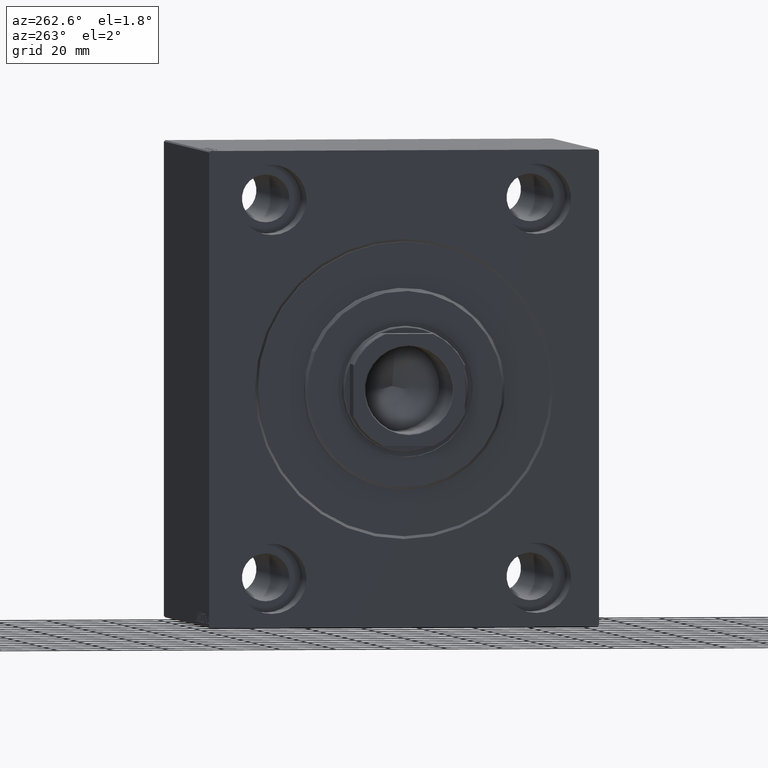
[diagram: clean part render]
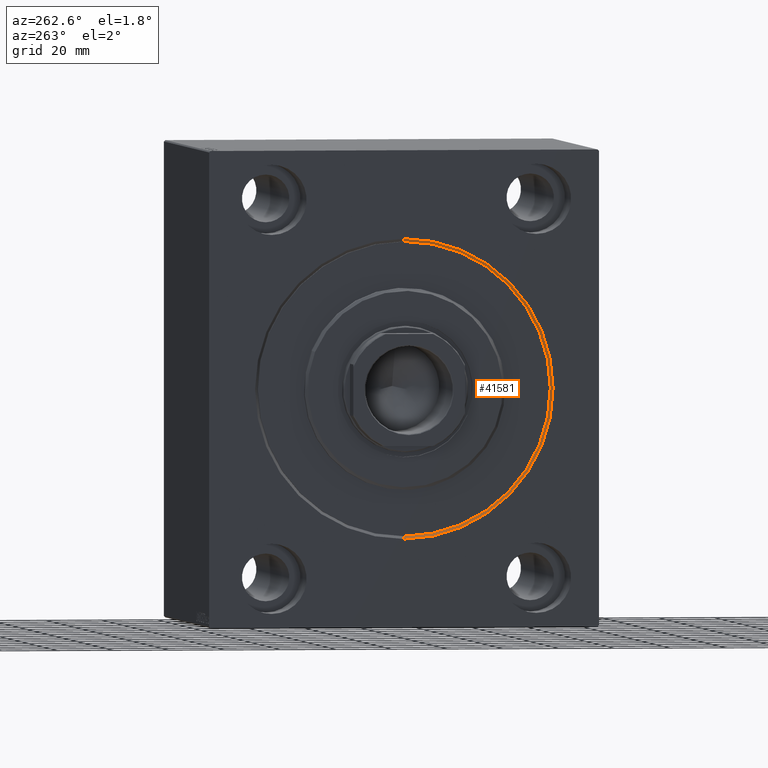
[diagram: same view with one face highlighted and labeled with its STEP entity id]
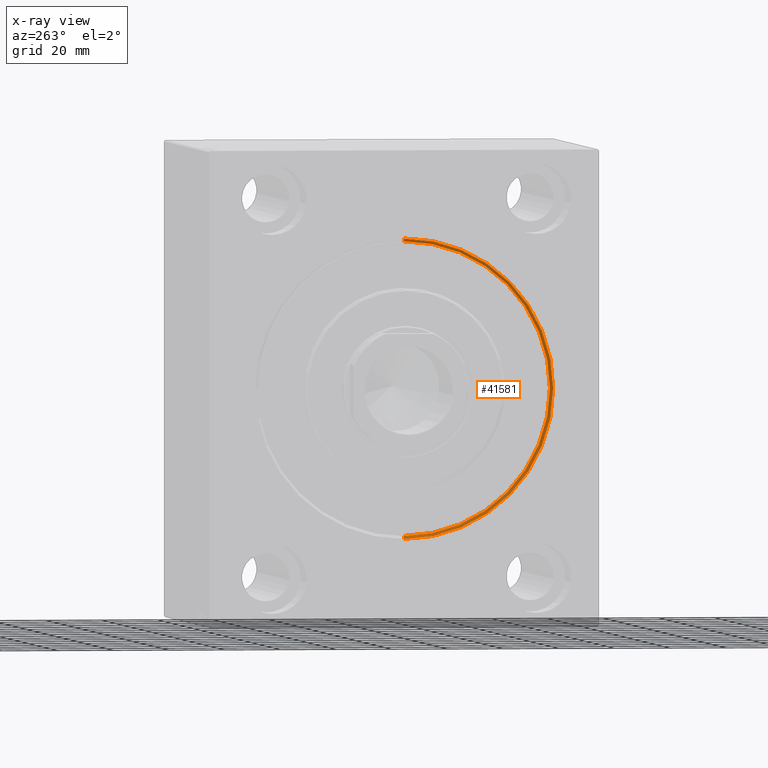
[diagram: x-ray of the same camera — body ghosted, the highlighted face saturated]
A machine part, auxiliary view. The second image highlights one B-rep face of the part: STEP entity #41581.
The next image is the same camera in x-ray: the body ghosted, the highlighted face saturated — about 0% of this face is hidden behind the body in this view.
In plain terms, the highlighted conical surface has half-angle 45 deg.
Its self-contained STEP definition (entity closure, byte-faithful):
#504 = CIRCLE ( 'NONE', #33932, 52.49999999999999289 ) ;
#975 = VECTOR ( 'NONE', #38723, 999.9999999999998863 ) ;
#3887 = EDGE_CURVE ( 'NONE', #18472, #4777, #504, .T. ) ;
#4777 = VERTEX_POINT ( 'NONE', #17384 ) ;
#7023 = CARTESIAN_POINT ( 'NONE',  ( 0.000000000000000000, 0.000000000000000000, 0.000000000000000000 ) ) ;
#9867 = LINE ( 'NONE', #11979, #975 ) ;
#10505 = VERTEX_POINT ( 'NONE', #11702 ) ;
#11702 = CARTESIAN_POINT ( 'NONE',  ( 0.000000000000000000, 0.000000000000000000, 53.50000000000002842 ) ) ;
#11979 = CARTESIAN_POINT ( 'NONE',  ( 1.000000000000021760, 6.429395695523603167E-15, -52.49999999999999289 ) ) ;
#12441 = EDGE_CURVE ( 'NONE', #4777, #10505, #28731, .T. ) ;
#13245 = DIRECTION ( 'NONE',  ( 0.000000000000000000, 0.000000000000000000, 1.000000000000000000 ) ) ;
#15953 = CIRCLE ( 'NONE', #30890, 53.50000000000002842 ) ;
#17384 = CARTESIAN_POINT ( 'NONE',  ( 1.000000000000021760, 0.000000000000000000, 52.49999999999999289 ) ) ;
#18472 = VERTEX_POINT ( 'NONE', #29806 ) ;
#19712 = CARTESIAN_POINT ( 'NONE',  ( 1.000000000000021760, 0.000000000000000000, 0.000000000000000000 ) ) ;
#20355 = ORIENTED_EDGE ( 'NONE', *, *, #3887, .F. ) ;
#22273 = CARTESIAN_POINT ( 'NONE',  ( 1.000000000000021760, 0.000000000000000000, 52.49999999999999289 ) ) ;
#22492 = DIRECTION ( 'NONE',  ( -0.7071067811865425767, 0.000000000000000000, 0.7071067811865525687 ) ) ;
#22789 = ORIENTED_EDGE ( 'NONE', *, *, #37538, .T. ) ;
#23233 = DIRECTION ( 'NONE',  ( 0.000000000000000000, 0.000000000000000000, -1.000000000000000000 ) ) ;
#25796 = CARTESIAN_POINT ( 'NONE',  ( 0.000000000000000000, 6.551860375438343048E-15, -53.50000000000002842 ) ) ;
#28731 = LINE ( 'NONE', #22273, #34761 ) ;
#29806 = CARTESIAN_POINT ( 'NONE',  ( 1.000000000000021760, 6.429395695523603167E-15, -52.49999999999999289 ) ) ;
#30890 = AXIS2_PLACEMENT_3D ( 'NONE', #7023, #37513, #33955 ) ;
#31650 = CONICAL_SURFACE ( 'NONE', #38740, 52.49999999999999289, 0.7853981633974552734 ) ;
#32898 = ORIENTED_EDGE ( 'NONE', *, *, #12441, .F. ) ;
#33687 = ORIENTED_EDGE ( 'NONE', *, *, #40557, .F. ) ;
#33932 = AXIS2_PLACEMENT_3D ( 'NONE', #40155, #36803, #23233 ) ;
#33955 = DIRECTION ( 'NONE',  ( 0.000000000000000000, 0.000000000000000000, -1.000000000000000000 ) ) ;
#34761 = VECTOR ( 'NONE', #22492, 999.9999999999998863 ) ;
#35907 = EDGE_LOOP ( 'NONE', ( #20355, #22789, #33687, #32898 ) ) ;
#36803 = DIRECTION ( 'NONE',  ( -1.000000000000000000, 0.000000000000000000, 0.000000000000000000 ) ) ;
#37513 = DIRECTION ( 'NONE',  ( 1.000000000000000000, 0.000000000000000000, 0.000000000000000000 ) ) ;
#37538 = EDGE_CURVE ( 'NONE', #18472, #42102, #9867, .T. ) ;
#38723 = DIRECTION ( 'NONE',  ( -0.7071067811865425767, 8.659560562354994488E-17, -0.7071067811865525687 ) ) ;
#38740 = AXIS2_PLACEMENT_3D ( 'NONE', #19712, #43749, #13245 ) ;
#39984 = FACE_OUTER_BOUND ( 'NONE', #35907, .T. ) ;
#40155 = CARTESIAN_POINT ( 'NONE',  ( 1.000000000000021760, 0.000000000000000000, 0.000000000000000000 ) ) ;
#40557 = EDGE_CURVE ( 'NONE', #10505, #42102, #15953, .T. ) ;
#41581 = ADVANCED_FACE ( 'NONE', ( #39984 ), #31650, .F. ) ;
#42102 = VERTEX_POINT ( 'NONE', #25796 ) ;
#43749 = DIRECTION ( 'NONE',  ( -1.000000000000000000, 0.000000000000000000, 0.000000000000000000 ) ) ;